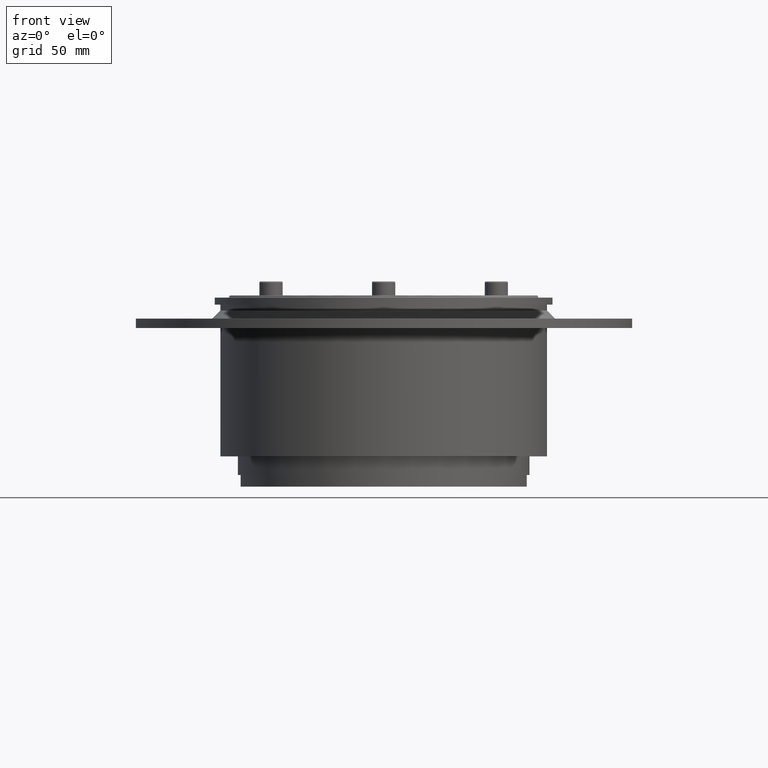
[diagram: clean part render]
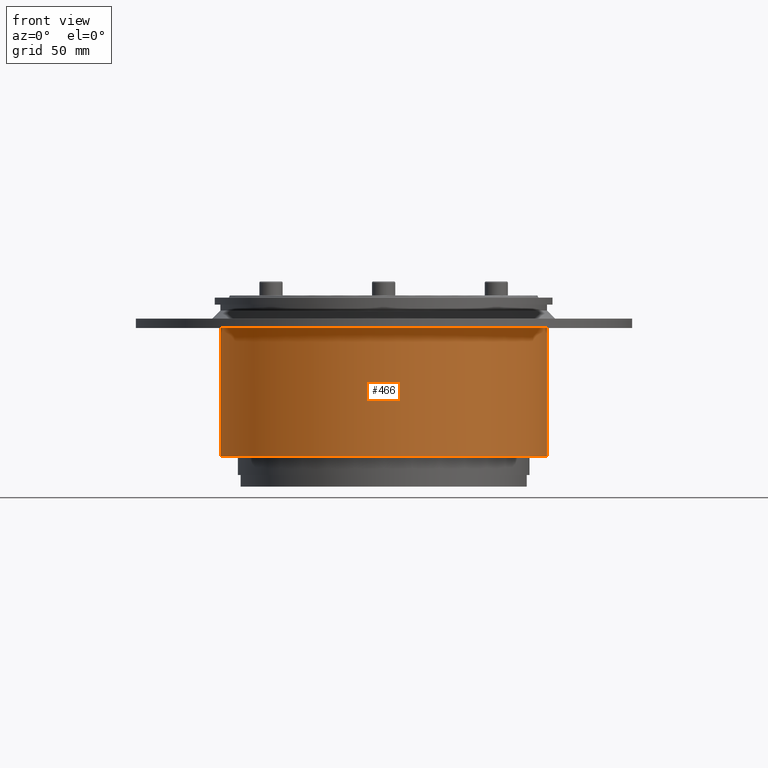
[diagram: same view with one face highlighted and labeled with its STEP entity id]
A machine part, front view. The second image highlights one B-rep face of the part: STEP entity #466.
In plain terms, the highlighted cylindrical surface (bore or boss wall) has radius 70 mm, axis along (0, 0, -1).
Its self-contained STEP definition (entity closure, byte-faithful):
#395=CARTESIAN_POINT('',(70.0,8.572528E-015,-10.0));
#396=VERTEX_POINT('',#395);
#397=CARTESIAN_POINT('',(0.0,0.0,-10.0));
#398=DIRECTION('',(0.0,0.0,-1.0));
#399=DIRECTION('',(-1.0,0.0,0.0));
#400=AXIS2_PLACEMENT_3D('',#397,#398,#399);
#401=CIRCLE('',#400,70.0);
#402=EDGE_CURVE('',#396,#396,#401,.T.);
#447=CARTESIAN_POINT('',(0.0,0.0,0.0));
#448=DIRECTION('',(0.0,0.0,-1.0));
#449=DIRECTION('',(-1.0,0.0,0.0));
#450=AXIS2_PLACEMENT_3D('',#447,#448,#449);
#451=CYLINDRICAL_SURFACE('',#450,70.0);
#452=ORIENTED_EDGE('',*,*,#402,.T.);
#453=EDGE_LOOP('',(#452));
#454=FACE_OUTER_BOUND('',#453,.T.);
#455=CARTESIAN_POINT('',(70.0,8.572528E-015,-65.0));
#456=VERTEX_POINT('',#455);
#457=CARTESIAN_POINT('',(0.0,0.0,-65.0));
#458=DIRECTION('',(0.0,0.0,-1.0));
#459=DIRECTION('',(-1.0,0.0,0.0));
#460=AXIS2_PLACEMENT_3D('',#457,#458,#459);
#461=CIRCLE('',#460,70.0);
#462=EDGE_CURVE('',#456,#456,#461,.T.);
#463=ORIENTED_EDGE('',*,*,#462,.F.);
#464=EDGE_LOOP('',(#463));
#465=FACE_BOUND('',#464,.T.);
#466=ADVANCED_FACE('',(#454,#465),#451,.T.);